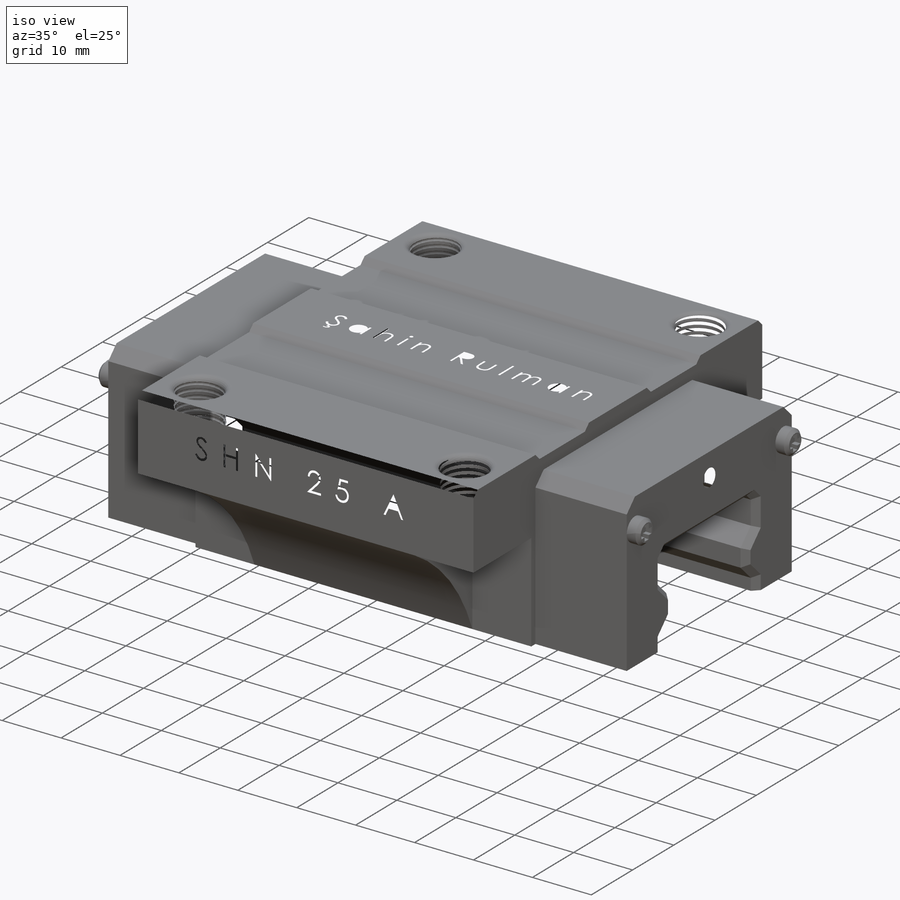
[diagram: iso view]
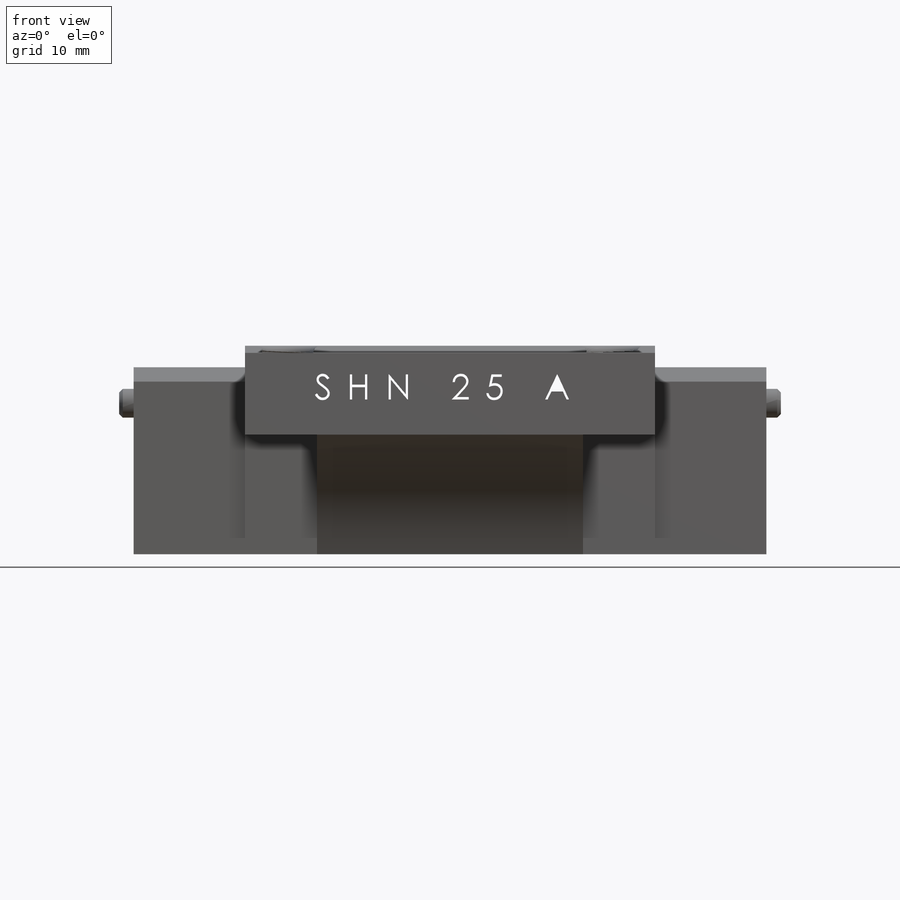
[diagram: front view]
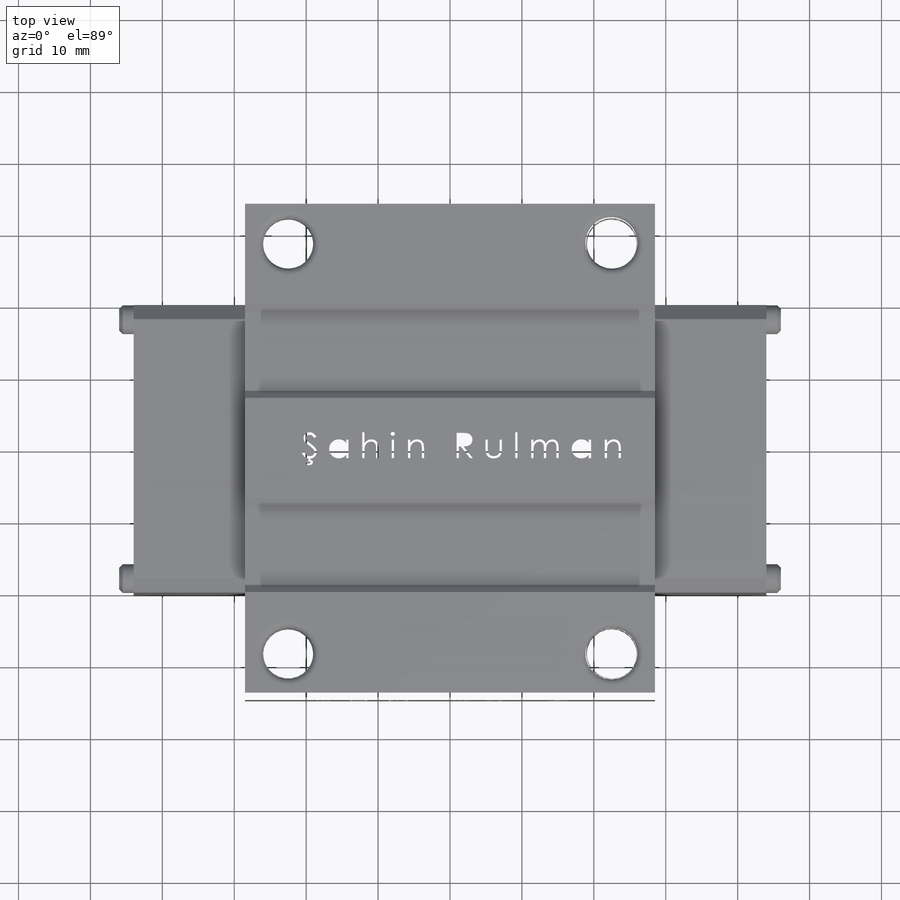
[diagram: top view]
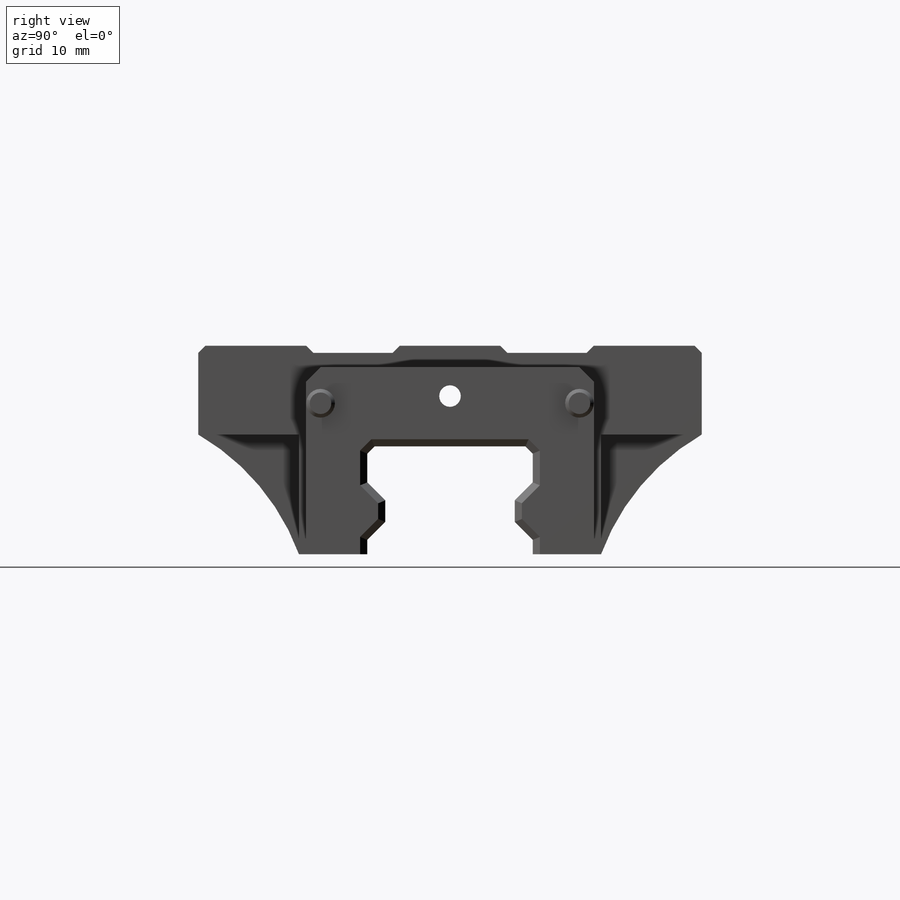
[diagram: right view]
SOLIDWORKS PART (.sldprt)
format: sldprt  version: not decoded by parser v0  size: 2,023,424 bytes
history: native  units: mm
features: sketch x12, cut_extrude x6, mirror x6, extrude x4, chamfer x4, material x1, fillet x1, helix x1, plane x1, sweep x1 (+11 scaffold rows collapsed)
feature tree (48):
  scaffold x11  (default folders/planes/origin — collapsed)
  material  "Material <not specified>"
  sketch  "Sketch1"  dims[c1.D1=70.0mm c1.D2=35.0mm c1.D3=12.0mm c1.D8=14.0mm c1.D9=29.0mm c1.D10=14.0mm c1.D11=29.0mm c2.D2=70.0mm c2.D3=35.0mm c2.D8=28.5mm c2.D9=7.0mm c2.D4=14.0mm c2.D5=29.0mm c2.D12=1.0mm c2.D13=1.0mm c2.D14=29.0mm c2.D15=29.0mm c3.D14=12.0mm c3.D15=1.0mm c3.D4=28.5mm c3.D5=28.5mm c3.D6=3.5mm c3.D7=3.5mm c4.D5=28.5mm c4.D6=3.5mm c4.D7=3.5mm c4.D8=5.0mm c4.D9=7.0mm]
  extrude  "Boss-Extrude1"  Depth=57mm
  sketch  "Sketch2"  dims[c1.D1=1.0mm c1.D2=1.0mm c1.D3=3.0mm c2.D1=11.5mm c2.D2=11.5mm]
  extrude  "Boss-Extrude2"  Depth=15.5mm
  sketch  "Sketch5"  dims[D1=4.0mm D2=3.0mm D3=1.5mm D4=1.5mm D5=0.7mm D6=1.5mm D7=1.5mm D8=1.5mm D9=0.7mm]
  extrude  "Boss-Extrude5"  Depth=2mm
  chamfer  "Chamfer2"  Distance=0.5mm Angle=45deg
  sketch  "Sketch6"  dims[D1=0.5mm D2=0.5mm D3=0.5mm D4=0.5mm]
  cut_extrude  "Cut-Extrude3"  Depth=1mm
  mirror  "Mirror4"
  sketch  "Sketch8"  dims[D5=7.0mm D1=22.5mm D2=22.5mm D3=28.5mm D4=28.5mm]
  cut_extrude  "Cut-Extrude4"  [1 undecoded]
  mirror  "Mirror5"
  sketch  "Sketch9"  dims[D1=32.0mm]
  extrude  "Boss-Extrude6"  Depth=37mm
  mirror  "Mirror6"
  sketch  "Sketch11"  dims[D3=15.0mm D4=5.0mm D5=2.5mm D6=2.5mm D7=3.0mm D8=2.5mm D9=22.0mm D1=11.5mm D2=11.5mm]
  cut_extrude  "Cut-Extrude5"  [1 undecoded]
  chamfer  "Chamfer3"  Distance=1mm Angle=45deg
  chamfer  "Chamfer4"  Distance=2mm Angle=45deg
  fillet  "Fillet1"  Radius=1mm
  sketch  "Sketch13"
  helix  "Helix/Spiral1"  Pitch=14.75mm
  plane  "Plane1"
  sketch  "Sketch14"  dims[D1=0.5mm]
  sweep  "Cut-Sweep1"
  mirror  "Mirror7"
  mirror  "Mirror8"
  sketch  "Sketch15"
  cut_extrude  "Cut-Extrude6"  Depth=2mm
  chamfer  "Chamfer5"  Distance=1mm Angle=45deg
  sketch  "Sketch16"
  cut_extrude  "Cut-Extrude7"  Depth=2mm
  sketch  "Sketch17"  dims[D1=3.0mm D2=4.0mm]
  cut_extrude  "Cut-Extrude8"  [1 undecoded]
  mirror  "Mirror9"
decode coverage: 22 of 35 modeling features carry decoded parameters
note: 3 parameter values undecoded
summary: no parameter record found for 3 features
note: suppression state not decoded; provenance and decode notes live in map.json
